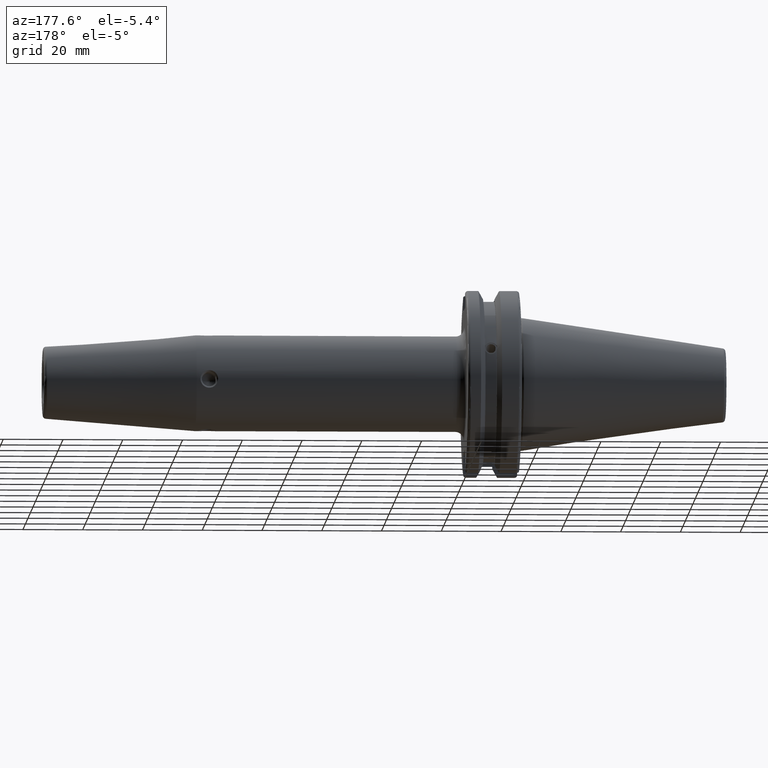
[diagram: clean part render]
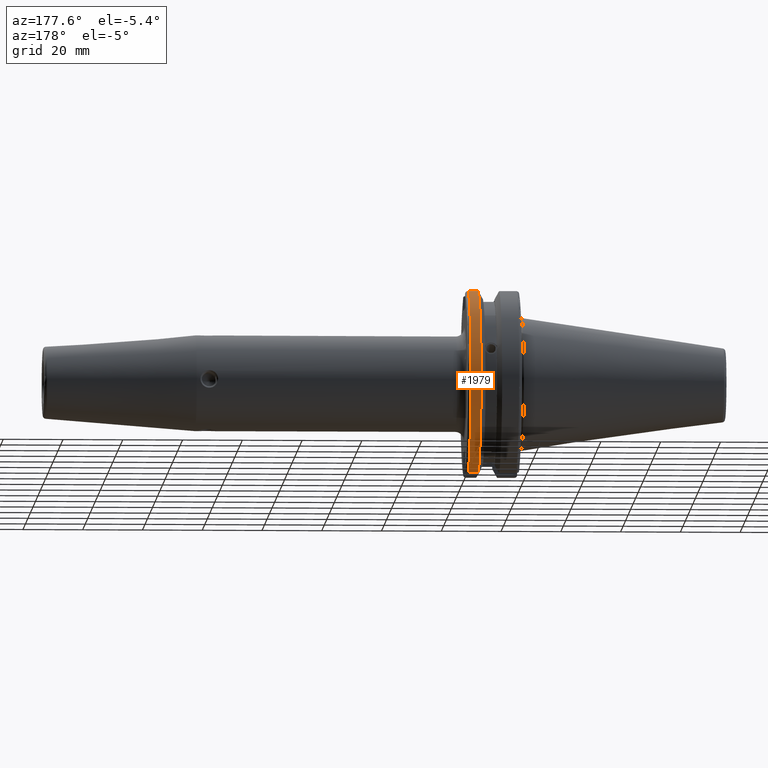
[diagram: same view with one face highlighted and labeled with its STEP entity id]
A machine part, auxiliary view. The second image highlights one B-rep face of the part: STEP entity #1979.
In plain terms, the highlighted cylindrical surface (partial cylindrical patch) has radius 31.75 mm, axis along (1, 0, 0).
Its self-contained STEP definition (entity closure, byte-faithful):
#237=FACE_OUTER_BOUND('',#368,.T.);
#368=EDGE_LOOP('',(#1757,#1758,#1759,#1760));
#463=LINE('',#4446,#581);
#503=LINE('',#4676,#621);
#581=VECTOR('',#2580,10.);
#621=VECTOR('',#2694,10.);
#684=CIRCLE('',#2158,31.75);
#698=CIRCLE('',#2198,31.75);
#907=VERTEX_POINT('',#4420);
#908=VERTEX_POINT('',#4429);
#910=VERTEX_POINT('',#4442);
#955=VERTEX_POINT('',#4675);
#1158=EDGE_CURVE('',#907,#908,#684,.T.);
#1162=EDGE_CURVE('',#910,#907,#463,.T.);
#1235=EDGE_CURVE('',#908,#955,#503,.T.);
#1237=EDGE_CURVE('',#910,#955,#698,.T.);
#1757=ORIENTED_EDGE('',*,*,#1158,.F.);
#1758=ORIENTED_EDGE('',*,*,#1162,.F.);
#1759=ORIENTED_EDGE('',*,*,#1237,.T.);
#1760=ORIENTED_EDGE('',*,*,#1235,.F.);
#1884=CYLINDRICAL_SURFACE('',#2197,31.75);
#1979=ADVANCED_FACE('',(#237),#1884,.T.);
#2158=AXIS2_PLACEMENT_3D('',#4430,#2575,#2576);
#2197=AXIS2_PLACEMENT_3D('',#4680,#2695,#2696);
#2198=AXIS2_PLACEMENT_3D('',#4681,#2697,#2698);
#2575=DIRECTION('center_axis',(1.,0.,0.));
#2576=DIRECTION('ref_axis',(0.,1.,-6.12323399573676E-17));
#2580=DIRECTION('',(1.,0.,0.));
#2694=DIRECTION('',(-1.,0.,0.));
#2695=DIRECTION('center_axis',(1.,0.,0.));
#2696=DIRECTION('ref_axis',(0.,1.,0.));
#2697=DIRECTION('center_axis',(1.,0.,0.));
#2698=DIRECTION('ref_axis',(0.,0.,-1.));
#4420=CARTESIAN_POINT('',(18.05,8.67204822802685,-30.5427254764662));
#4429=CARTESIAN_POINT('',(18.05,8.67204822802685,30.5427254764662));
#4430=CARTESIAN_POINT('Origin',(18.05,0.,0.));
#4442=CARTESIAN_POINT('',(14.7021667690756,8.67204822802685,-30.5427254764662));
#4446=CARTESIAN_POINT('',(16.8760833845378,8.67204822802685,-30.5427254764662));
#4675=CARTESIAN_POINT('',(14.7021667690756,8.67204822802685,30.5427254764662));
#4676=CARTESIAN_POINT('',(16.8760833845378,8.67204822802685,30.5427254764662));
#4680=CARTESIAN_POINT('Origin',(16.8760833845378,0.,0.));
#4681=CARTESIAN_POINT('Origin',(14.7021667690756,0.,0.));